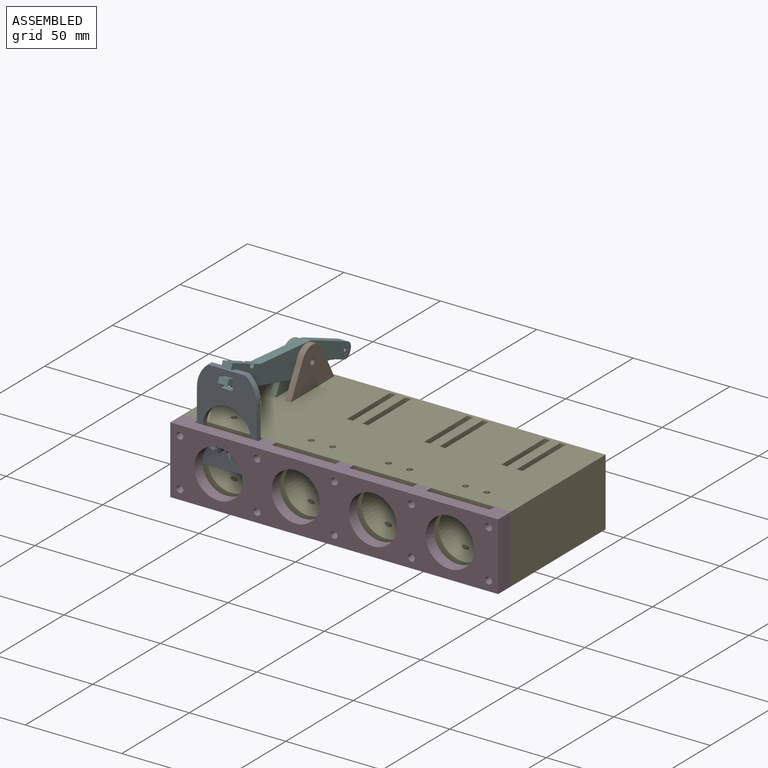
[diagram: assembled view]
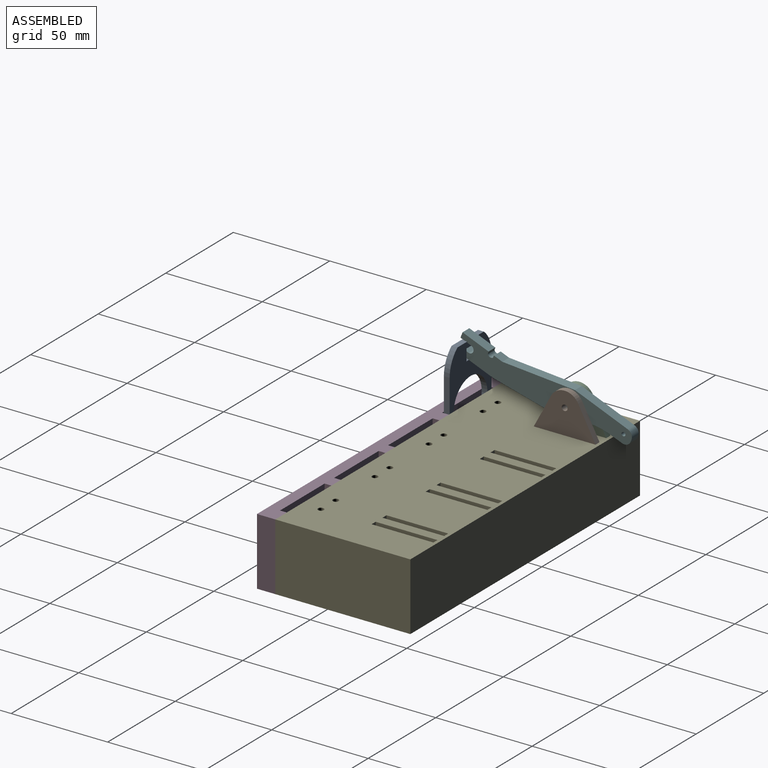
[diagram: assembled view, second angle]
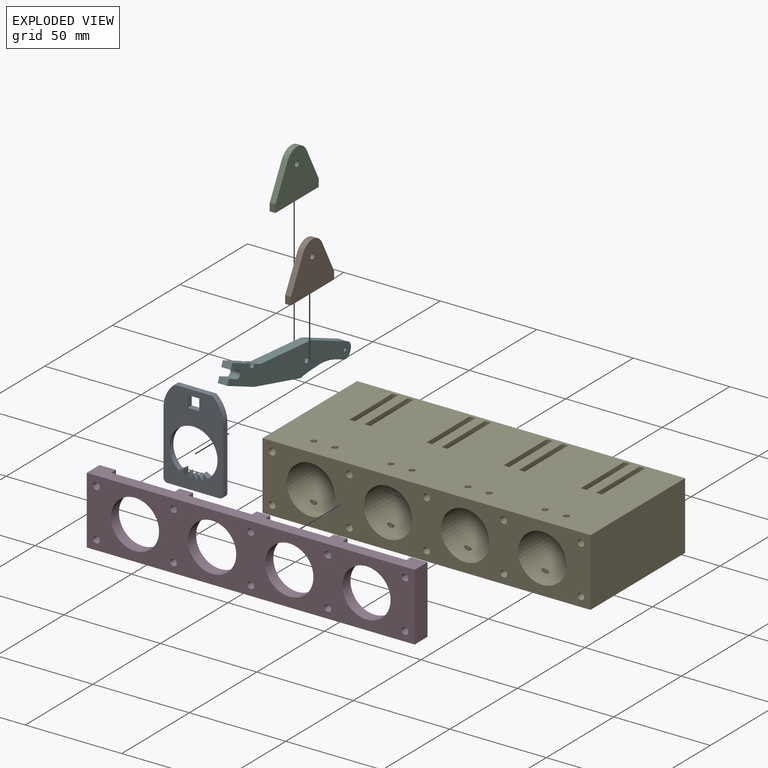
[diagram: exploded view]
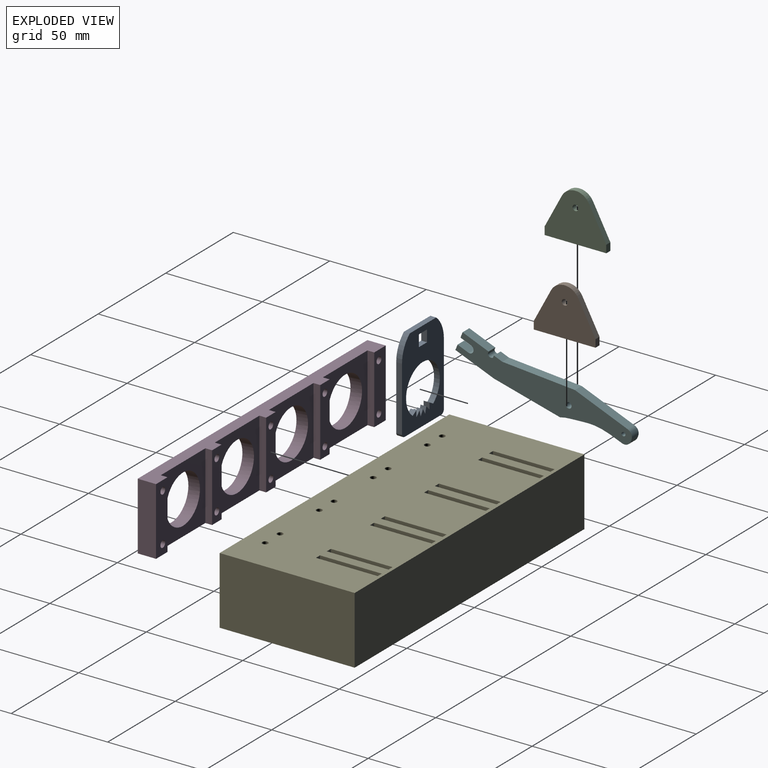
[diagram: exploded view, second angle]
ASSEMBLY  parts=6 mates=5
PART A: 29 faces, bbox 31x3x47 mm
  f0: cylinder r=12.5mm len=3mm, axis (0,-1,0), area 0.2mm2, adj f1,f24,f25,f26
  f1: plane 3x2.76mm, normal (-0.87,0,0.5), area 9.5mm2, adj f0,f2,f25,f26
  f2: plane 3x2.76mm, normal (0.87,0,0.5), area 9.5mm2, adj f1,f3,f25,f26
  f3: cylinder r=12.5mm len=3mm, axis (0,-1,0), area 0.2mm2, adj f2,f4,f25,f26
  f4: plane 3.07x3mm, normal (-0.97,0,0.26), area 9.5mm2, adj f3,f5,f25,f26
  f5: plane 3x2.25mm, normal (0.71,0,0.71), area 9.5mm2, adj f4,f6,f25,f26
  f6: cylinder r=12.5mm len=3mm, axis (0,-1,0), area 0.2mm2, adj f5,f7,f25,f26
  f7: plane 3.18x3mm, normal (-1,0,0), area 9.5mm2, adj f6,f8,f25,f26
  f8: plane 3x2.76mm, normal (0.5,0,0.87), area 9.5mm2, adj f7,f9,f25,f26
  f9: cylinder r=12.5mm len=25mm, axis (0,-1,0), area 186.8mm2, adj f8,f10,f25,f26
  f10: plane 3x2.76mm, normal (-0.5,0,0.87), area 9.5mm2, adj f9,f11,f25,f26
  f11: plane 3.18x3mm, normal (1,0,0), area 9.5mm2, adj f10,f12,f25,f26
  f12: cylinder r=12.5mm len=3mm, axis (0,-1,0), area 0.2mm2, adj f11,f13,f25,f26
  f13: plane 3x2.25mm, normal (-0.71,0,0.71), area 9.5mm2, adj f12,f24,f25,f26
  f14: cylinder r=15.5mm len=12.03mm, axis (0,-1,0), area 41.3mm2, adj f15,f22,f25,f26
  f15: plane 33x3mm, normal (1,0,0), area 99mm2, adj f14,f25,f26,f27
  f16: plane 27x3mm, normal (0,0,-1), area 81mm2, adj f25,f26,f27,f28
  f17: plane 33x3mm, normal (-1,0,0), area 99mm2, adj f18,f25,f26,f28
  f18: cylinder r=15.5mm len=12.03mm, axis (0,-1,0), area 41.3mm2, adj f17,f22,f25,f26
  f19: plane 6x3mm, normal (1,0,0), area 18mm2, adj f20,f23,f25,f26
  f20: plane 6x3mm, normal (0,0,1), area 18mm2, adj f19,f21,f25,f26
  f21: plane 6x3mm, normal (-1,0,0), area 18mm2, adj f20,f23,f25,f26
  f22: plane 19.54x3mm, normal (0,0,1), area 58.6mm2, adj f14,f18,f25,f26
  f23: plane 6x3mm, normal (0,0,-1), area 18mm2, adj f19,f21,f25,f26
  f24: plane 3.07x3mm, normal (0.97,0,0.26), area 9.5mm2, adj f0,f13,f25,f26
  f25: plane 47.03x31mm, normal (0,1,0), area 910.5mm2, adj f0,f1,f2,f3,f4,f5,f6,f7
  f26: plane 47.03x31mm, normal (0,-1,0), area 910.5mm2, adj f0,f1,f2,f3,f4,f5,f6,f7
  f27: cylinder r=2mm len=3mm, axis (0,1,0), area 9.4mm2, adj f15,f16,f25,f26
  f28: cylinder r=2mm len=3mm, axis (0,-1,0), area 9.4mm2, adj f16,f17,f25,f26
PART B: 9 faces, bbox 3x32x25 mm
  f0: plane 16.76x8.94mm, normal (0,0.88,0.47), area 57mm2, adj f1,f5,f7,f8
  f1: plane 4x3mm, normal (0,1,0), area 12mm2, adj f0,f2,f7,f8
  f2: plane 32x3mm, normal (0,0,-1), area 96mm2, adj f1,f3,f7,f8
  f3: plane 4x3mm, normal (0,-1,0), area 12mm2, adj f2,f4,f7,f8
  f4: plane 16.76x8.94mm, normal (0,-0.88,0.47), area 57mm2, adj f3,f5,f7,f8
  f5: cylinder r=8mm len=14.12mm, axis (1,0,0), area 51.9mm2, adj f0,f4,f7,f8
  f6: cylinder r=1.5mm len=3mm, axis (1,0,0), area 28.3mm2, adj f7,f8
  f7: plane 32x25mm, normal (-1,0,0), area 550.1mm2, adj f0,f1,f2,f3,f4,f5,f6
  f8: plane 32x25mm, normal (1,0,0), area 550.1mm2, adj f0,f1,f2,f3,f4,f5,f6
PART C: same geometry as B
PART D: 36 faces, bbox 170x9.5x35 mm
  f0: plane 170x9.5mm, normal (0,0,1), area 1153mm2, adj f2,f3,f6,f19,f20,f21,f22,f23
  f1: plane 170x9.5mm, normal (0,0,-1), area 1153mm2, adj f2,f3,f6,f19,f20,f21,f22,f23
  f2: plane 35x9.5mm, normal (1,0,0), area 332.5mm2, adj f0,f1,f6,f34
  f3: plane 35x9.5mm, normal (-1,0,0), area 332.5mm2, adj f0,f1,f6,f31
  f4: cylinder r=12.5mm len=25mm, axis (0,-1,0), area 471.2mm2, adj f6,f25
  f5: cylinder r=12.5mm len=25mm, axis (0,-1,0), area 471.2mm2, adj f6,f19
  f6: plane 170x35mm, normal (0,-1,0), area 3890.3mm2, adj f0,f1,f2,f3,f4,f5,f7,f8
  f7: cylinder r=12.5mm len=25mm, axis (0,-1,0), area 471.2mm2, adj f6,f28
  f8: cylinder r=1.75mm len=9.5mm, axis (0,-1,0), area 104.5mm2, adj f6,f34
  f9: cylinder r=1.75mm len=9.5mm, axis (0,-1,0), area 104.5mm2, adj f6,f35
  f10: cylinder r=1.75mm len=9.5mm, axis (0,-1,0), area 104.5mm2, adj f6,f35
  f11: cylinder r=1.75mm len=9.5mm, axis (0,-1,0), area 104.5mm2, adj f6,f33
  f12: cylinder r=1.75mm len=9.5mm, axis (0,-1,0), area 104.5mm2, adj f6,f34
  f13: cylinder r=1.75mm len=9.5mm, axis (0,-1,0), area 104.5mm2, adj f6,f31
  f14: cylinder r=12.5mm len=25mm, axis (0,-1,0), area 471.2mm2, adj f6,f22
  f15: cylinder r=1.75mm len=9.5mm, axis (0,-1,0), area 104.5mm2, adj f6,f33
  f16: cylinder r=1.75mm len=9.5mm, axis (0,-1,0), area 104.5mm2, adj f6,f32
  f17: cylinder r=1.75mm len=9.5mm, axis (0,-1,0), area 104.5mm2, adj f6,f32
  f18: cylinder r=1.75mm len=9.5mm, axis (0,-1,0), area 104.5mm2, adj f6,f31
  f19: plane 35x33mm, normal (0,1,0), area 664.1mm2, adj f0,f1,f5,f20,f21
  f20: plane 35x3.5mm, normal (1,0,0), area 122.5mm2, adj f0,f1,f19,f32
  f21: plane 35x3.5mm, normal (-1,0,0), area 122.5mm2, adj f0,f1,f19,f33
  f22: plane 35x33mm, normal (0,1,0), area 664.1mm2, adj f0,f1,f14,f23,f24
  f23: plane 35x3.5mm, normal (1,0,0), area 122.5mm2, adj f0,f1,f22,f33
  f24: plane 35x3.5mm, normal (-1,0,0), area 122.5mm2, adj f0,f1,f22,f35
  f25: plane 35x33mm, normal (0,1,0), area 664.1mm2, adj f0,f1,f4,f26,f27
  f26: plane 35x3.5mm, normal (1,0,0), area 122.5mm2, adj f0,f1,f25,f35
  f27: plane 35x3.5mm, normal (-1,0,0), area 122.5mm2, adj f0,f1,f25,f34
  f28: plane 35x33mm, normal (0,1,0), area 664.1mm2, adj f0,f1,f7,f29,f30
  f29: plane 35x3.5mm, normal (1,0,0), area 122.5mm2, adj f0,f1,f28,f31
  f30: plane 35x3.5mm, normal (-1,0,0), area 122.5mm2, adj f0,f1,f28,f32
  f31: plane 35x8.5mm, normal (0,1,0), area 278.3mm2, adj f0,f1,f3,f13,f18,f29
  f32: plane 35x7mm, normal (0,1,0), area 225.8mm2, adj f0,f1,f16,f17,f20,f30
  f33: plane 35x7mm, normal (0,1,0), area 225.8mm2, adj f0,f1,f11,f15,f21,f23
  f34: plane 35x8.5mm, normal (0,1,0), area 278.3mm2, adj f0,f1,f2,f8,f12,f27
  f35: plane 35x7mm, normal (0,1,0), area 225.8mm2, adj f0,f1,f9,f10,f24,f26
PART E: 90 faces, bbox 170x70x35 mm
  f0: plane 170x70mm, normal (0,0,1), area 11075.5mm2, adj f1,f3,f5,f7,f9,f11,f13,f15
  f1: plane 170x35mm, normal (0,1,0), area 5950mm2, adj f0,f18,f19,f20
  f2: cylinder r=1.5mm len=7.14mm, axis (0,0,1), area 59.7mm2, adj f20,f28
  f3: cylinder r=1.5mm len=7.14mm, axis (0,0,1), area 59.7mm2, adj f0,f28
  f4: plane 25x25mm, normal (0,-1,0), area 490.9mm2, adj f28
  f5: cylinder r=1.5mm len=7.14mm, axis (0,0,1), area 59.7mm2, adj f0,f28
  f6: cylinder r=1.5mm len=7.14mm, axis (0,0,1), area 59.7mm2, adj f20,f26
  f7: cylinder r=1.5mm len=7.14mm, axis (0,0,1), area 59.7mm2, adj f0,f26
  f8: plane 25x25mm, normal (0,-1,0), area 490.9mm2, adj f26
  f9: cylinder r=1.5mm len=7.14mm, axis (0,0,1), area 59.7mm2, adj f0,f26
  f10: cylinder r=1.5mm len=7.14mm, axis (0,0,1), area 59.7mm2, adj f20,f24
  f11: cylinder r=1.5mm len=7.14mm, axis (0,0,1), area 59.7mm2, adj f0,f24
  f12: plane 25x25mm, normal (0,-1,0), area 490.9mm2, adj f24
  f13: cylinder r=1.5mm len=7.14mm, axis (0,0,1), area 59.7mm2, adj f0,f24
  f14: cylinder r=1.5mm len=7.14mm, axis (0,0,1), area 59.7mm2, adj f20,f22
  f15: cylinder r=1.5mm len=7.14mm, axis (0,0,1), area 59.7mm2, adj f0,f22
  f16: plane 25x25mm, normal (0,-1,0), area 490.9mm2, adj f22
  f17: cylinder r=1.5mm len=7.14mm, axis (0,0,1), area 59.7mm2, adj f0,f22
  f18: plane 70x35mm, normal (-1,0,0), area 2450mm2, adj f0,f1,f20,f29
  f19: plane 70x35mm, normal (1,0,0), area 2450mm2, adj f0,f1,f20,f29
  f20: plane 170x70mm, normal (0,0,-1), area 11843.5mm2, adj f1,f2,f6,f10,f14,f18,f19,f21
  f21: cylinder r=1.5mm len=7.14mm, axis (0,0,1), area 59.7mm2, adj f20,f22
  f22: cylinder r=12.5mm len=40mm, axis (0,-1,0), area 3110mm2, adj f14,f15,f16,f17,f21,f29
  f23: cylinder r=1.5mm len=7.14mm, axis (0,0,1), area 59.7mm2, adj f20,f24
  f24: cylinder r=12.5mm len=40mm, axis (0,-1,0), area 3110mm2, adj f10,f11,f12,f13,f23,f29
  f25: cylinder r=1.5mm len=7.14mm, axis (0,0,1), area 59.7mm2, adj f20,f26
  f26: cylinder r=12.5mm len=40mm, axis (0,-1,0), area 3110mm2, adj f6,f7,f8,f9,f25,f29
  f27: cylinder r=1.5mm len=7.14mm, axis (0,0,1), area 59.7mm2, adj f20,f28
  f28: cylinder r=12.5mm len=40mm, axis (0,-1,0), area 3110mm2, adj f2,f3,f4,f5,f27,f29
  f29: plane 170x35mm, normal (0,-1,0), area 3890.3mm2, adj f0,f18,f19,f20,f22,f24,f26,f28
  f30: plane 3.5x3.5mm, normal (0,-1,0), area 9.6mm2, adj f31
  f31: cylinder r=1.75mm len=40mm, axis (0,-1,0), area 439.8mm2, adj f29,f30
  f32: plane 3.5x3.5mm, normal (0,-1,0), area 9.6mm2, adj f33
  f33: cylinder r=1.75mm len=40mm, axis (0,-1,0), area 439.8mm2, adj f29,f32
  f34: plane 3.5x3.5mm, normal (0,-1,0), area 9.6mm2, adj f35
  f35: cylinder r=1.75mm len=40mm, axis (0,-1,0), area 439.8mm2, adj f29,f34
  f36: plane 3.5x3.5mm, normal (0,-1,0), area 9.6mm2, adj f37
  f37: cylinder r=1.75mm len=40mm, axis (0,-1,0), area 439.8mm2, adj f29,f36
  f38: plane 3.5x3.5mm, normal (0,-1,0), area 9.6mm2, adj f39
  f39: cylinder r=1.75mm len=40mm, axis (0,-1,0), area 439.8mm2, adj f29,f38
  f40: plane 3.5x3.5mm, normal (0,-1,0), area 9.6mm2, adj f41
  f41: cylinder r=1.75mm len=40mm, axis (0,-1,0), area 439.8mm2, adj f29,f40
  f42: plane 3.5x3.5mm, normal (0,-1,0), area 9.6mm2, adj f43
  f43: cylinder r=1.75mm len=40mm, axis (0,-1,0), area 439.8mm2, adj f29,f42
  f44: plane 3.5x3.5mm, normal (0,-1,0), area 9.6mm2, adj f45
  f45: cylinder r=1.75mm len=40mm, axis (0,-1,0), area 439.8mm2, adj f29,f44
  f46: plane 3.5x3.5mm, normal (0,-1,0), area 9.6mm2, adj f47
  f47: cylinder r=1.75mm len=40mm, axis (0,-1,0), area 439.8mm2, adj f29,f46
  f48: plane 3.5x3.5mm, normal (0,-1,0), area 9.6mm2, adj f49
  f49: cylinder r=1.75mm len=40mm, axis (0,-1,0), area 439.8mm2, adj f29,f48
  f50: plane 4x3mm, normal (0,-1,0), area 12mm2, adj f0,f51,f53,f54
  f51: plane 32x4mm, normal (1,0,0), area 128mm2, adj f0,f50,f52,f54
  f52: plane 4x3mm, normal (0,1,0), area 12mm2, adj f0,f51,f53,f54
  f53: plane 32x4mm, normal (-1,0,0), area 128mm2, adj f0,f50,f52,f54
  f54: plane 32x3mm, normal (0,0,1), area 96mm2, adj f50,f51,f52,f53
  f55: plane 4x3mm, normal (0,-1,0), area 12mm2, adj f0,f56,f58,f59
  f56: plane 32x4mm, normal (1,0,0), area 128mm2, adj f0,f55,f57,f59
  f57: plane 4x3mm, normal (0,1,0), area 12mm2, adj f0,f56,f58,f59
  f58: plane 32x4mm, normal (-1,0,0), area 128mm2, adj f0,f55,f57,f59
  f59: plane 32x3mm, normal (0,0,1), area 96mm2, adj f55,f56,f57,f58
  f60: plane 4x3mm, normal (0,-1,0), area 12mm2, adj f0,f61,f63,f64
  f61: plane 32x4mm, normal (1,0,0), area 128mm2, adj f0,f60,f62,f64
  f62: plane 4x3mm, normal (0,1,0), area 12mm2, adj f0,f61,f63,f64
  f63: plane 32x4mm, normal (-1,0,0), area 128mm2, adj f0,f60,f62,f64
  f64: plane 32x3mm, normal (0,0,1), area 96mm2, adj f60,f61,f62,f63
  f65: plane 32x4mm, normal (-1,0,0), area 128mm2, adj f0,f66,f68,f69
  f66: plane 4x3mm, normal (0,-1,0), area 12mm2, adj f0,f65,f67,f69
  f67: plane 32x4mm, normal (1,0,0), area 128mm2, adj f0,f66,f68,f69
  f68: plane 4x3mm, normal (0,1,0), area 12mm2, adj f0,f65,f67,f69
  f69: plane 32x3mm, normal (0,0,1), area 96mm2, adj f65,f66,f67,f68
  f70: plane 4x3mm, normal (0,-1,0), area 12mm2, adj f0,f71,f73,f74
  f71: plane 32x4mm, normal (1,0,0), area 128mm2, adj f0,f70,f72,f74
  f72: plane 4x3mm, normal (0,1,0), area 12mm2, adj f0,f71,f73,f74
  f73: plane 32x4mm, normal (-1,0,0), area 128mm2, adj f0,f70,f72,f74
  f74: plane 32x3mm, normal (0,0,1), area 96mm2, adj f70,f71,f72,f73
  f75: plane 4x3mm, normal (0,-1,0), area 12mm2, adj f0,f76,f78,f79
  f76: plane 32x4mm, normal (1,0,0), area 128mm2, adj f0,f75,f77,f79
  f77: plane 4x3mm, normal (0,1,0), area 12mm2, adj f0,f76,f78,f79
  f78: plane 32x4mm, normal (-1,0,0), area 128mm2, adj f0,f75,f77,f79
  f79: plane 32x3mm, normal (0,0,1), area 96mm2, adj f75,f76,f77,f78
  f80: plane 4x3mm, normal (0,-1,0), area 12mm2, adj f0,f81,f83,f84
  f81: plane 32x4mm, normal (1,0,0), area 128mm2, adj f0,f80,f82,f84
  f82: plane 4x3mm, normal (0,1,0), area 12mm2, adj f0,f81,f83,f84
  f83: plane 32x4mm, normal (-1,0,0), area 128mm2, adj f0,f80,f82,f84
  f84: plane 32x3mm, normal (0,0,1), area 96mm2, adj f80,f81,f82,f83
  f85: plane 32x4mm, normal (-1,0,0), area 128mm2, adj f0,f86,f88,f89
  f86: plane 4x3mm, normal (0,-1,0), area 12mm2, adj f0,f85,f87,f89
  f87: plane 32x4mm, normal (1,0,0), area 128mm2, adj f0,f86,f88,f89
  f88: plane 4x3mm, normal (0,1,0), area 12mm2, adj f0,f85,f87,f89
  f89: plane 32x3mm, normal (0,0,1), area 96mm2, adj f85,f86,f87,f88
PART F: 21 faces, bbox 5x91.3x21.1 mm
  f0: plane 5x3mm, normal (0,-1,0), area 15mm2, adj f1,f16,f17,f18
  f1: plane 14.5x5mm, normal (0,0,1), area 72.5mm2, adj f0,f2,f17,f18
  f2: extruded ~5x2mm, area 14.6mm2, adj f1,f3,f17,f18
  f3: extruded ~5x2mm, area 14.6mm2, adj f2,f4,f17,f18
  f4: plane 5x4.68mm, normal (0,0,1), area 23.4mm2, adj f3,f5,f17,f18
  f5: plane 36.1x11.15mm, normal (0,-0.3,0.96), area 188.9mm2, adj f4,f6,f17,f18
  f6: plane 29.49x5mm, normal (0,0,1), area 147.4mm2, adj f5,f17,f18,f19
  f7: plane 5x0.9mm, normal (0,1,0), area 4.5mm2, adj f17,f18,f19,f20
  f8: extruded ~31.01x8.78mm, area 164.2mm2, adj f9,f17,f18,f20
  f9: plane 35.18x5mm, normal (0,0.13,-0.99), area 177.3mm2, adj f8,f10,f17,f18
  f10: plane 21.5x5mm, normal (0,0,-1), area 107.5mm2, adj f9,f11,f17,f18
  f11: plane 5x3mm, normal (0,-1,0), area 15mm2, adj f10,f12,f17,f18
  f12: plane 6x5mm, normal (0,0,1), area 30mm2, adj f11,f13,f17,f18
  f13: cylinder r=2mm len=5mm, axis (1,0,0), area 31.4mm2, adj f12,f16,f17,f18
  f14: cylinder r=1.5mm len=5mm, axis (1,0,0), area 47.1mm2, adj f17,f18
  f15: cylinder r=1mm len=5mm, axis (1,0,0), area 31.4mm2, adj f17,f18
  f16: plane 6x5mm, normal (0,0,-1), area 30mm2, adj f0,f13,f17,f18
  f17: plane 91.27x21.15mm, normal (-1,0,0), area 970.8mm2, adj f0,f1,f2,f3,f4,f5,f6,f7
  f18: plane 91.27x21.15mm, normal (1,0,0), area 970.8mm2, adj f0,f1,f2,f3,f4,f5,f6,f7
  f19: cylinder r=3.5mm len=5mm, axis (1,0,0), area 27.5mm2, adj f6,f7,f17,f18
  f20: cylinder r=3.5mm len=5mm, axis (1,0,0), area 27.9mm2, adj f7,f8,f17,f18
PLACE A t=(-112.11,7.59,7.77)mm
PLACE B t=(15.89,6.89,-14)mm
PLACE C t=(7.89,6.89,-14)mm
PLACE D t=(7.89,7.39,-9)mm
PLACE E t=(7.89,6.89,-9)mm fixed
PLACE F rot(axis=(-1,0,0),22deg) t=(7.89,-11.34,-1.79)mm
MATE parallel D.f7 <-> A.f26  axis (0,1,0) through (-52.11,-26.61,8.5)mm
MATE revolute F.f14 <-> C.f5  axis (-1,0,0) through (-54.61,29.18,39)mm
MATE parallel E.f29 <-> D.f33  axis (0,-1,0) through (7.89,-23.11,8.5)mm
MATE parallel E.f89 <-> C.f2  axis (0,0,1) through (-56.11,29.18,22)mm
MATE parallel E.f69 <-> B.f2  axis (0,0,1) through (-48.11,29.18,22)mm
